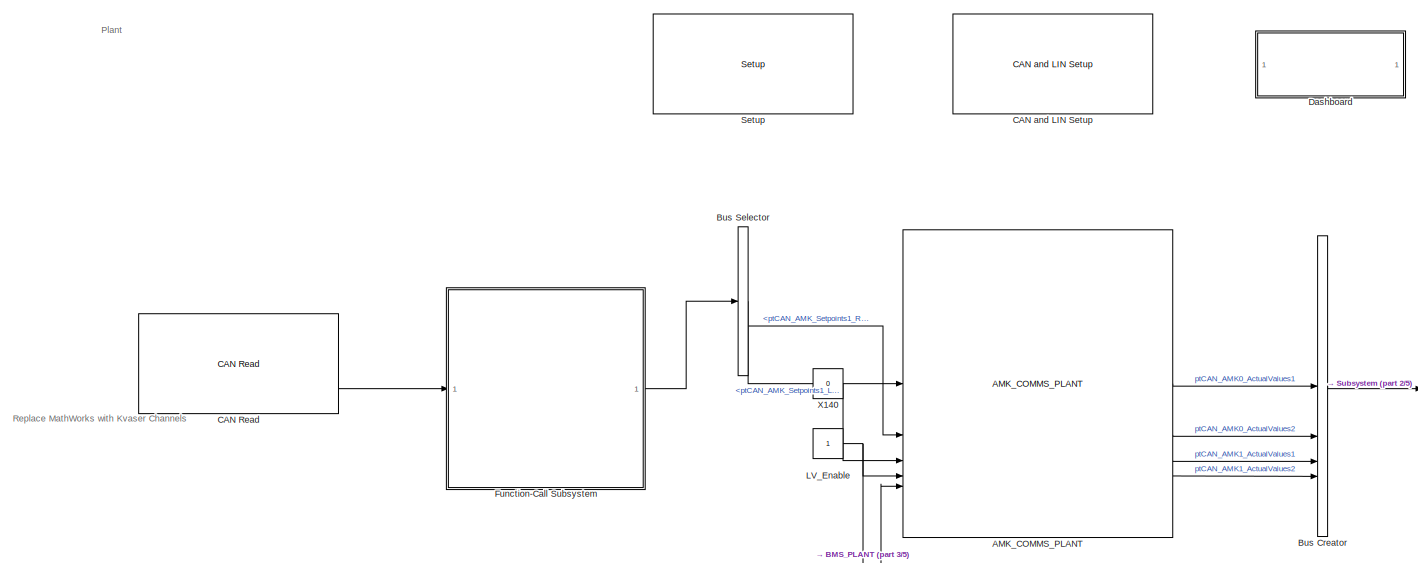
[diagram: root canvas - part 1/5, full width, top band]
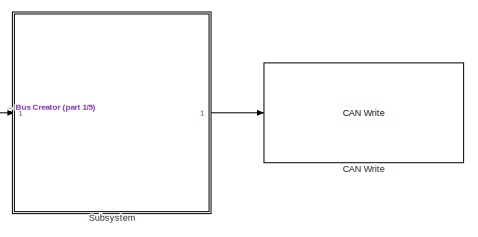
[diagram: root canvas - part 2/5, top right region]
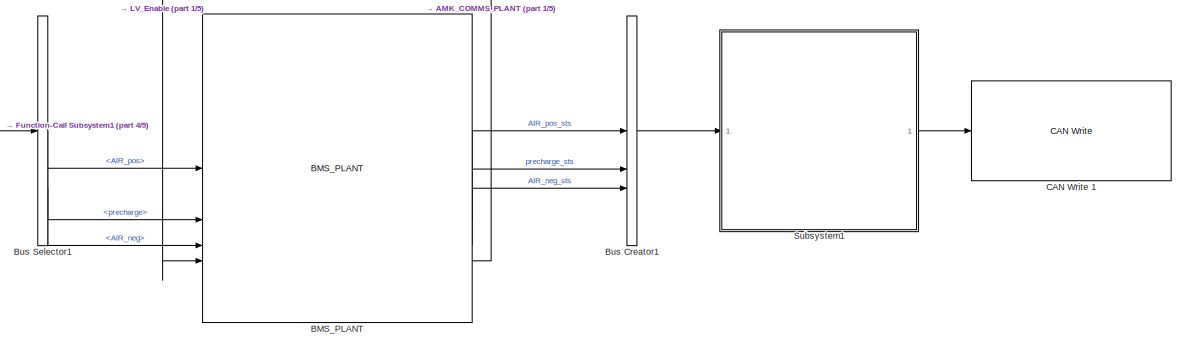
[diagram: root canvas - part 3/5, middle right region]
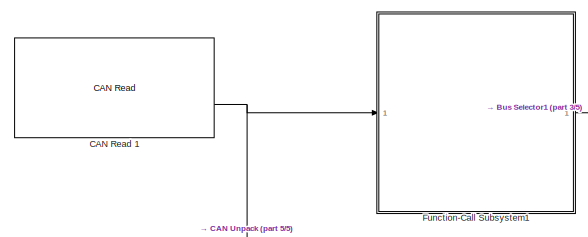
[diagram: root canvas - part 4/5, middle left region]
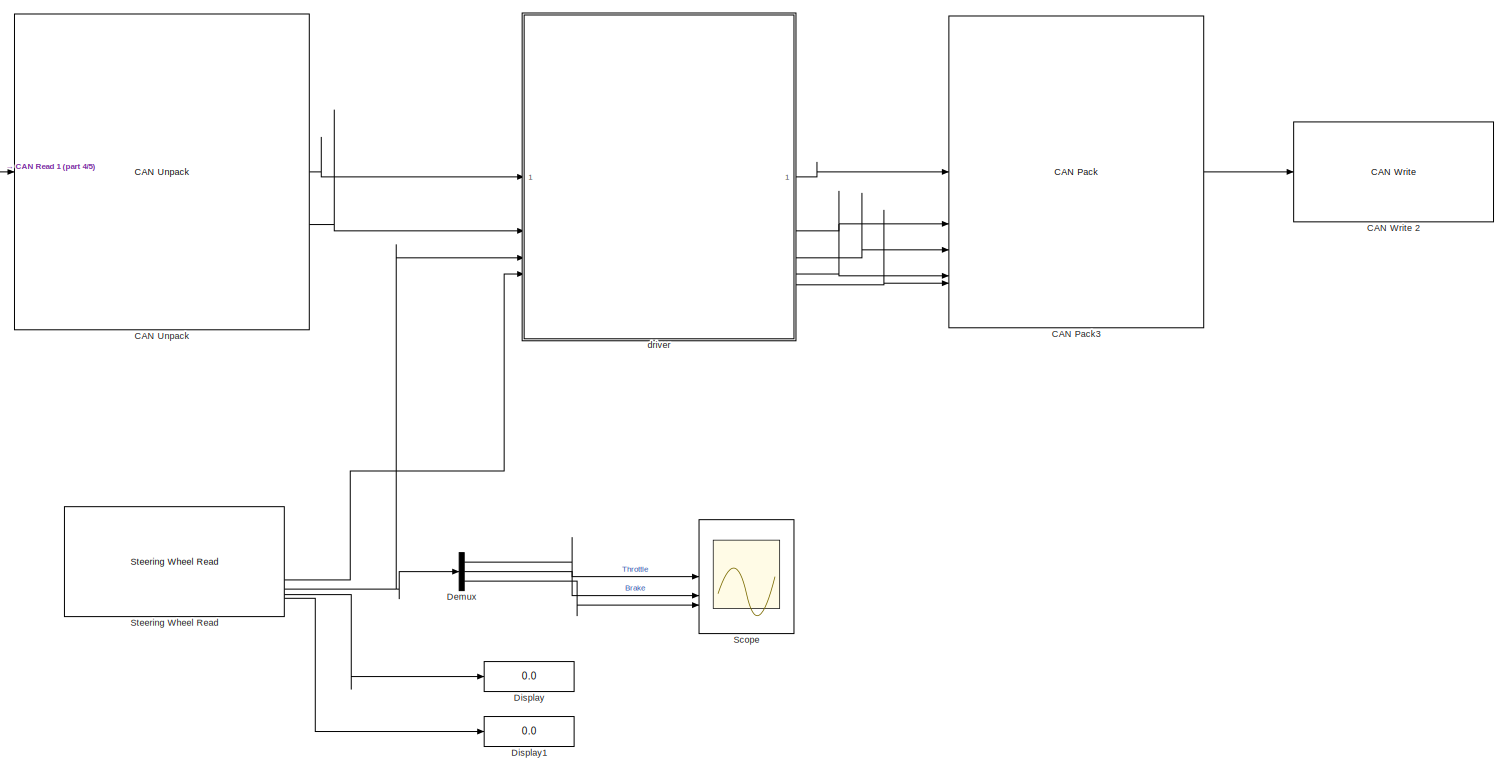
[diagram: root canvas - part 5/5, full width, bottom band]
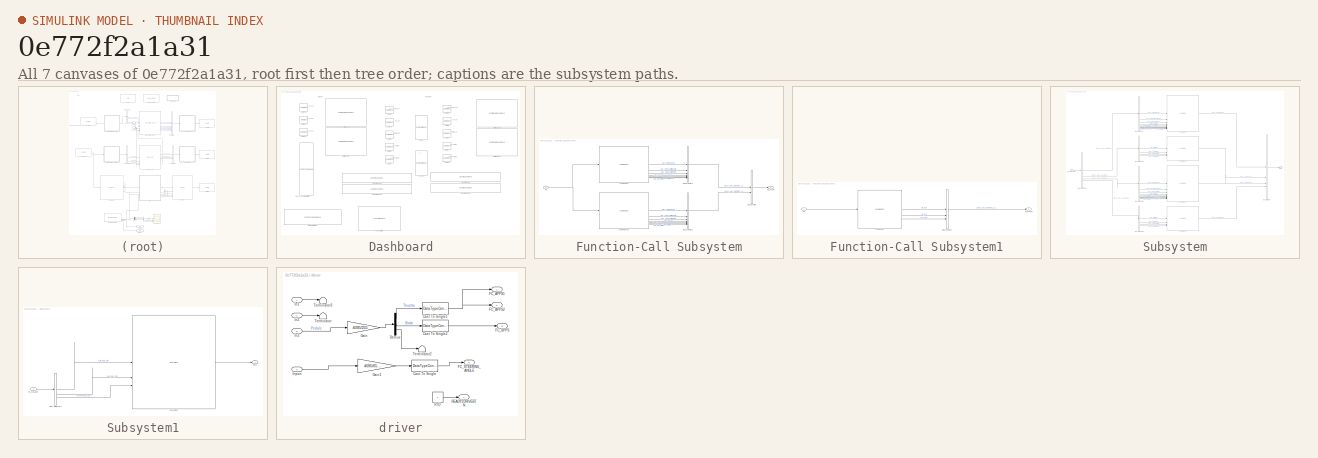
[diagram: thumbnail index - all 7 canvases of the model, root first then tree order]
MODEL slx_0e772f2a1a31
KIND model
CONFIG AbsTol = auto
CONFIG EnableMultiTasking = off
CONFIG FixedStep = 0.005
CONFIG MaxStep = auto
CONFIG MinStep = auto
CONFIG RelTol = 1e-3
CONFIG SampleTimeConstraint = Unconstrained
CONFIG SolverName = FixedStepAuto
CONFIG StartTime = 0.0
CONFIG StopTime = inf
BLOCK [Reference] AMK_COMMS_PLANT  REF=AMK_comms_plant_lib/AMK_COMMS_PLANT
  SourceBlock = AMK_comms_plant_lib/AMK_COMMS_PLANT
  SourceType = SubSystem
BLOCK [Reference] BMS_PLANT  REF=BMS_plant_lib/BMS_PLANT
  SourceBlock = BMS_plant_lib/BMS_PLANT
  SourceType = SubSystem
BLOCK [BusCreator] Bus Creator
  DisplayOption = bar
  InheritFromInputs = on
  Inputs = 4
BLOCK [BusCreator] Bus Creator1
  DisplayOption = bar
  InheritFromInputs = on
  Inputs = 3
BLOCK [BusSelector] Bus Selector
  OutputSignals = ptCAN_AMK_Setpoints1_Left,ptCAN_AMK_Setpoints1_Right
BLOCK [BusSelector] Bus Selector1
  OutputSignals = AIR_pos,precharge,AIR_neg
BLOCK [Reference] CAN Pack3  REF=canmsglib/CAN Pack
  LibrarySourceBlock = embeddedtargetslib/Host Communication/CAN Pack
  SourceBlock = canmsglib/CAN Pack
  SourceType = CAN Pack
BLOCK [Reference] CAN Read   REF=speedgoatlib_IO614/CAN Read 
  SourceBlock = speedgoatlib_IO614/CAN Read
  SourceProductName = Simulink Real-Time: Speedgoat I/O Blockset
  SourceType = read_IO61X_can
BLOCK [Reference] CAN Read 1  REF=speedgoatlib_IO614/CAN Read 
  SourceBlock = speedgoatlib_IO614/CAN Read
  SourceProductName = Simulink Real-Time: Speedgoat I/O Blockset
  SourceType = read_IO61X_can
BLOCK [Reference] CAN Unpack  REF=canmsglib/CAN Unpack
  LibrarySourceBlock = canlib/CAN Unpack
  SourceBlock = canmsglib/CAN Unpack
  SourceType = CAN Unpack
BLOCK [Reference] CAN Write   REF=speedgoatlib_IO614/CAN Write 
  SourceBlock = speedgoatlib_IO614/CAN Write
  SourceProductName = Simulink Real-Time: Speedgoat I/O Blockset
  SourceType = write_IO61X_can
BLOCK [Reference] CAN Write 1  REF=speedgoatlib_IO614/CAN Write 
  SourceBlock = speedgoatlib_IO614/CAN Write
  SourceProductName = Simulink Real-Time: Speedgoat I/O Blockset
  SourceType = write_IO61X_can
BLOCK [Reference] CAN Write 2  REF=speedgoatlib_IO614/CAN Write 
  SourceBlock = speedgoatlib_IO614/CAN Write
  SourceProductName = Simulink Real-Time: Speedgoat I/O Blockset
  SourceType = write_IO61X_can
BLOCK [Reference] CAN and LIN Setup   REF=speedgoatlib_IO614/CAN and LIN Setup 
  LibrarySourceBlock = speedgoatlib_CANLIN_OfA2/CAN and LIN Setup
  SourceBlock = speedgoatlib_IO614/CAN and LIN Setup
  SourceType = setup_IO61X_canlin
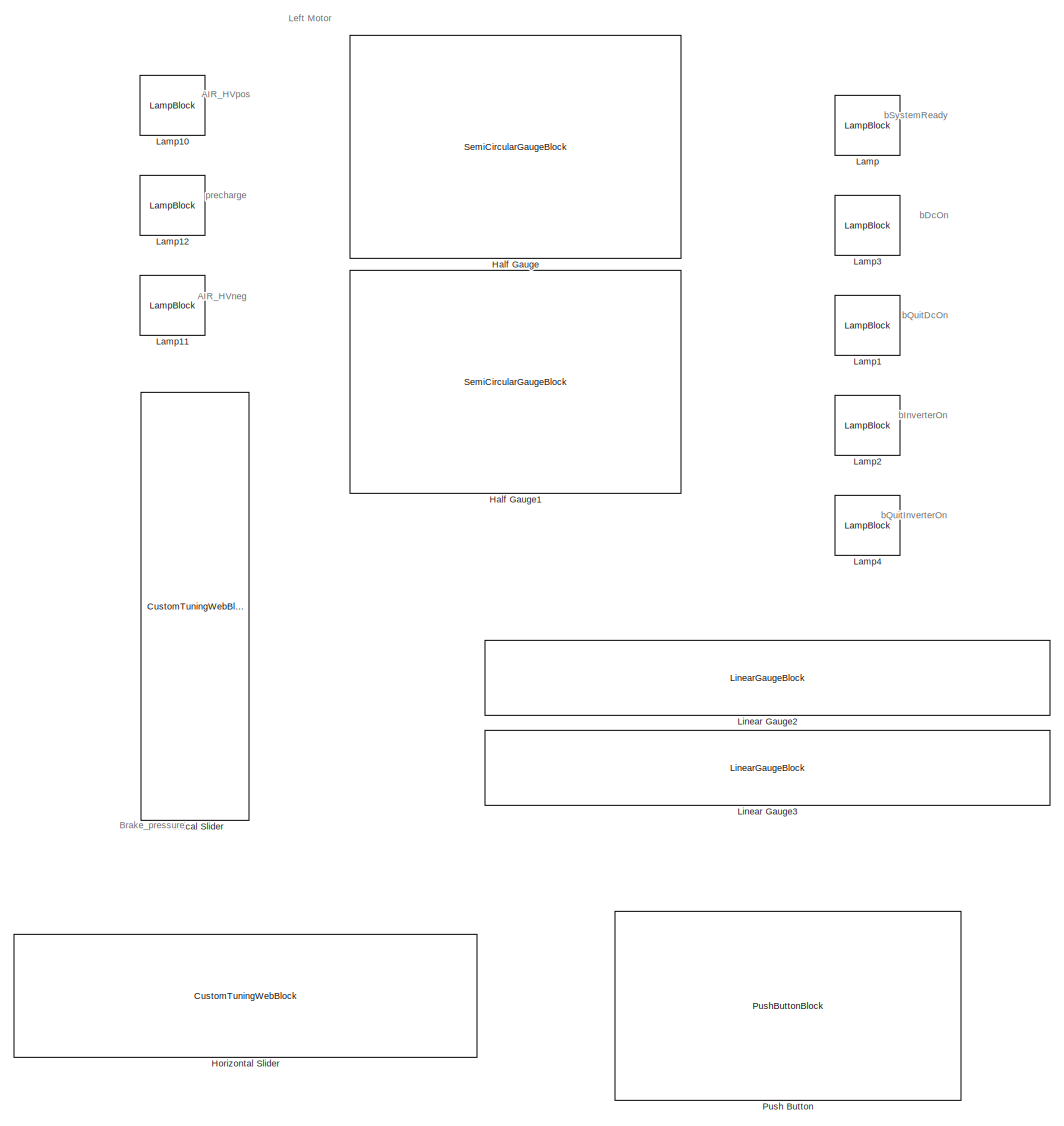
[diagram: Dashboard - part 1/2, left side, full height]
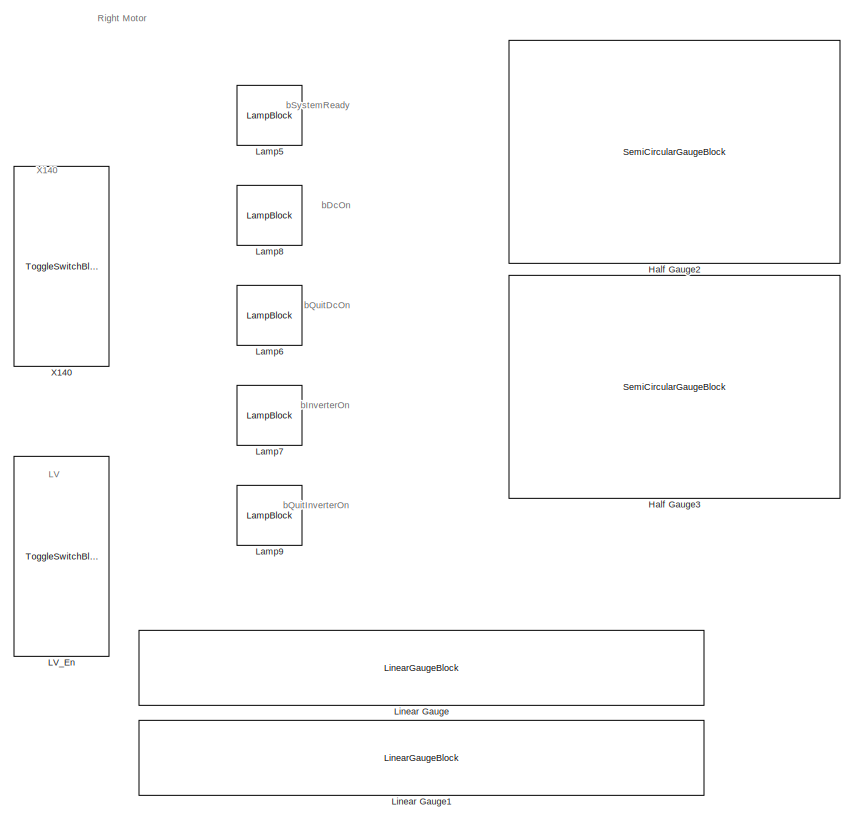
[diagram: Dashboard - part 2/2, middle right region]
BLOCK [SubSystem] Dashboard
BLOCK [SemiCircularGaugeBlock] Dashboard/Half Gauge
  LabelPosition = Bottom
  ScaleMax = 20000
  TickInterval = 2000
BLOCK [SemiCircularGaugeBlock] Dashboard/Half Gauge1
  LabelPosition = Bottom
  ScaleMax = 1000
  TickInterval = 100
BLOCK [SemiCircularGaugeBlock] Dashboard/Half Gauge2
  LabelPosition = Bottom
  ScaleMax = 20000
  TickInterval = 2000
BLOCK [SemiCircularGaugeBlock] Dashboard/Half Gauge3
  LabelPosition = Bottom
  ScaleMax = 1000
  TickInterval = 100
BLOCK [CustomTuningWebBlock] Dashboard/Horizontal Slider
  Configuration = {"components":[{"name":"LinearScaleComponent","settings":{"bounds":{"max":4095,"min":0,"tickInterval":"auto"},"internalTickHeightScaleFactor":0.5,"labelColor":[255,255,200],"labelFont":{"font":"Arial","fontSize":12},"labelOffset":0.05,"labelTransparency":1,"needleImage":{"size":[596,842],"src":"data:image\/svg+xml;base64,PD94bWwgdmVyc2lvbj0iMS4wIiBlbmNvZGluZz0idXRmLTgiPz4NCjwhLS0gR2VuZXJhdG9yOiBBZ...<+5491ch>
  LabelPosition = Hide
  ShowInitialText = on
BLOCK [ToggleSwitchBlock] Dashboard/LV_En
  LabelPosition = Bottom
BLOCK [LampBlock] Dashboard/Lamp
  LabelPosition = Hide
BLOCK [LampBlock] Dashboard/Lamp1
  LabelPosition = Hide
BLOCK [LampBlock] Dashboard/Lamp10
  LabelPosition = Hide
BLOCK [LampBlock] Dashboard/Lamp11
  LabelPosition = Hide
BLOCK [LampBlock] Dashboard/Lamp12
  LabelPosition = Hide
BLOCK [LampBlock] Dashboard/Lamp2
  LabelPosition = Hide
BLOCK [LampBlock] Dashboard/Lamp3
  LabelPosition = Hide
BLOCK [LampBlock] Dashboard/Lamp4
  LabelPosition = Hide
BLOCK [LampBlock] Dashboard/Lamp5
  LabelPosition = Hide
BLOCK [LampBlock] Dashboard/Lamp6
  LabelPosition = Hide
BLOCK [LampBlock] Dashboard/Lamp7
  LabelPosition = Hide
BLOCK [LampBlock] Dashboard/Lamp8
  LabelPosition = Hide
BLOCK [LampBlock] Dashboard/Lamp9
  LabelPosition = Hide
BLOCK [LinearGaugeBlock] Dashboard/Linear Gauge
  ScaleMax = 20000
  TickInterval = 2000
BLOCK [LinearGaugeBlock] Dashboard/Linear Gauge1
  ScaleMax = 1000
  TickInterval = 100
BLOCK [LinearGaugeBlock] Dashboard/Linear Gauge2
  ScaleMax = 20000
  TickInterval = 2000
BLOCK [LinearGaugeBlock] Dashboard/Linear Gauge3
  ScaleMax = 1000
  TickInterval = 100
BLOCK [PushButtonBlock] Dashboard/Push Button
  OffValue = -nan(ind)
BLOCK [CustomTuningWebBlock] Dashboard/Vertical Slider
  Configuration = {"components":[{"name":"LinearScaleComponent","settings":{"bounds":{"max":4095,"min":0,"tickInterval":"auto"},"internalTickHeightScaleFactor":0.5,"labelColor":[255,255,200],"labelFont":{"font":"Arial","fontSize":12},"labelOffset":0.05,"labelTransparency":1,"needleImage":{"size":[596,842],"src":"data:image\/svg+xml;base64,PD94bWwgdmVyc2lvbj0iMS4wIiBlbmNvZGluZz0idXRmLTgiPz4NCjwhLS0gR2VuZXJhdG9yOiBBZ...<+5493ch>
  LabelPosition = Hide
  ShowInitialText = on
BLOCK [ToggleSwitchBlock] Dashboard/X140
  LabelPosition = Bottom
BLOCK [Demux] Demux
  Outputs = 3
BLOCK [Display] Display
  Decimation = 1
BLOCK [Display] Display1
  Decimation = 1
BLOCK [SubSystem] Function-Call Subsystem
  TreatAsAtomicUnit = on
BLOCK [BusCreator] Function-Call Subsystem/Bus Creator
  DisplayOption = bar
  InheritFromInputs = on
  Inputs = 2
BLOCK [BusCreator] Function-Call Subsystem/Bus Creator1
  DisplayOption = bar
  InheritFromInputs = on
  Inputs = 7
BLOCK [BusCreator] Function-Call Subsystem/Bus Creator2
  DisplayOption = bar
  InheritFromInputs = on
  Inputs = 7
BLOCK [Reference] Function-Call Subsystem/CAN Unpack  REF=canmsglib/CAN Unpack
  LibrarySourceBlock = canlib/CAN Unpack
  SourceBlock = canmsglib/CAN Unpack
  SourceType = CAN Unpack
BLOCK [Reference] Function-Call Subsystem/CAN Unpack1  REF=canmsglib/CAN Unpack
  LibrarySourceBlock = canlib/CAN Unpack
  SourceBlock = canmsglib/CAN Unpack
  SourceType = CAN Unpack
BLOCK [Inport] Function-Call Subsystem/In1
BLOCK [Outport] Function-Call Subsystem/pt_CAN_IN
BLOCK [SubSystem] Function-Call Subsystem1
  TreatAsAtomicUnit = on
BLOCK [BusCreator] Function-Call Subsystem1/Bus Creator1
  DisplayOption = bar
  InheritFromInputs = on
  Inputs = 3
BLOCK [Reference] Function-Call Subsystem1/CAN Unpack  REF=canmsglib/CAN Unpack
  LibrarySourceBlock = canlib/CAN Unpack
  SourceBlock = canmsglib/CAN Unpack
  SourceType = CAN Unpack
BLOCK [Inport] Function-Call Subsystem1/In1
BLOCK [Outport] Function-Call Subsystem1/pt_CAN_IN
BLOCK [Constant] LV_Enable
BLOCK [Scope] Scope
  Floating = off
  NumInputPorts = 3
  ScopeSpecificationString = Simulink.scopes.TimeScopeBlockCfg('CurrentConfiguration', extmgr.ConfigurationSet(extmgr.Configuration('Core','General UI',true),extmgr.Configuration('Core','Source UI',true),extmgr.Configuration('Sources','WiredSimulink',true),extmgr.Configuration('Visuals','Time Domain',true,'SerializedDisplays',{struct('MinYLimReal','155.00000','MaxYLimReal','355.00000','YLabelReal','','MinYLimMag','155.00000',...<+1351ch>
BLOCK [Reference] Setup   REF=speedgoatlib_IO191/Setup 
  SourceBlock = speedgoatlib_IO191/Setup
  SourceType = setup_IO191
BLOCK [Reference] Steering Wheel Read  REF=slrealtimeG29lib/Steering Wheel Read
  SourceBlock = slrealtimeG29lib/Steering Wheel Read
  SourceType = Logitech G29 Steering Wheel
BLOCK [SubSystem] Subsystem
BLOCK [BusCreator] Subsystem/Bus Creator
  DisplayOption = bar
  InheritFromInputs = on
  Inputs = 4
BLOCK [BusSelector] Subsystem/Bus Selector
  OutputSignals = AMK_ActualVelocity,AMK_MagnetizingCurrent,AMK_TorqueCurrent_L,AMK_bDcOn,AMK_bDerating,AMK_bError,AMK_bInverterOn,AMK_bQuitDcOn,AMK_bQuitInverterOn,AMK_bSystemReady,AMK_bWarn
BLOCK [BusSelector] Subsystem/Bus Selector1
  OutputSignals = AMK_ErrorInfo,AMK_TempIGBT,AMK_TempInverter,AMK_TempMotor
BLOCK [BusSelector] Subsystem/Bus Selector2
  OutputSignals = AMK_ActualVelocity,AMK_MagnetizingCurrent,AMK_TorqueCurrent,AMK_bDcOn,AMK_bDerating,AMK_bError,AMK_bInverterOn,AMK_bQuitDcOn,AMK_bQuitInverterOn,AMK_bSystemReady,AMK_bWarn
BLOCK [BusSelector] Subsystem/Bus Selector3
  OutputSignals = AMK_ErrorInfo,AMK_TempIGBT,AMK_TempInverter,AMK_TempMotor
BLOCK [BusSelector] Subsystem/Bus Selector4
  OutputSignals = ptCAN_AMK0_ActualValues1,ptCAN_AMK0_ActualValues2,ptCAN_AMK1_ActualValues1,ptCAN_AMK1_ActualValues2
BLOCK [Reference] Subsystem/CAN Pack  REF=canmsglib/CAN Pack
  LibrarySourceBlock = canlib/CAN Pack
  SourceBlock = canmsglib/CAN Pack
  SourceType = CAN Pack
BLOCK [Reference] Subsystem/CAN Pack1  REF=canmsglib/CAN Pack
  LibrarySourceBlock = canlib/CAN Pack
  SourceBlock = canmsglib/CAN Pack
  SourceType = CAN Pack
BLOCK [Reference] Subsystem/CAN Pack2  REF=canmsglib/CAN Pack
  LibrarySourceBlock = canlib/CAN Pack
  SourceBlock = canmsglib/CAN Pack
  SourceType = CAN Pack
BLOCK [Reference] Subsystem/CAN Pack3  REF=canmsglib/CAN Pack
  LibrarySourceBlock = canlib/CAN Pack
  SourceBlock = canmsglib/CAN Pack
  SourceType = CAN Pack
BLOCK [Outport] Subsystem/Out1
BLOCK [Inport] Subsystem/pt_CAN_OUT
BLOCK [SubSystem] Subsystem1
BLOCK [BusSelector] Subsystem1/Bus Selector4
  OutputSignals = AIR_neg_sts,AIR_pos_sts,precharge_sts
BLOCK [Reference] Subsystem1/CAN Pack  REF=canmsglib/CAN Pack
  LibrarySourceBlock = canlib/CAN Pack
  SourceBlock = canmsglib/CAN Pack
  SourceType = CAN Pack
BLOCK [Outport] Subsystem1/Out1
BLOCK [Inport] Subsystem1/pt_CAN_OUT
BLOCK [Constant] X140
  Value = 0
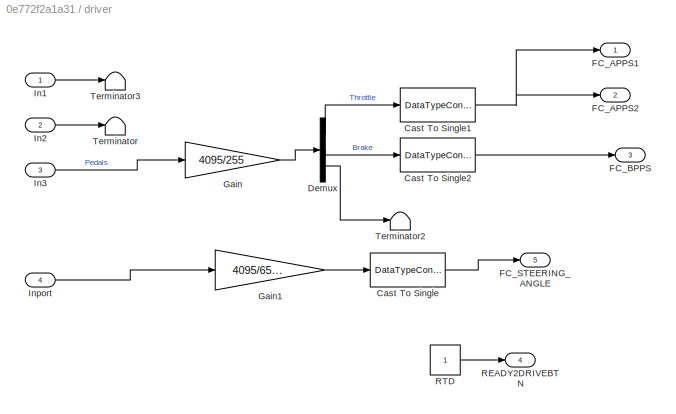
BLOCK [SubSystem] driver
BLOCK [DataTypeConversion] driver/Cast To Single
  OutDataTypeStr = single
  RndMeth = Floor
  SaturateOnIntegerOverflow = off
BLOCK [DataTypeConversion] driver/Cast To Single1
  OutDataTypeStr = single
  RndMeth = Floor
  SaturateOnIntegerOverflow = off
BLOCK [DataTypeConversion] driver/Cast To Single2
  OutDataTypeStr = single
  RndMeth = Floor
  SaturateOnIntegerOverflow = off
BLOCK [Demux] driver/Demux
  Outputs = 3
BLOCK [Outport] driver/FC_APPS1
BLOCK [Outport] driver/FC_APPS2
  Port = 2
BLOCK [Outport] driver/FC_BPPS
  Port = 3
BLOCK [Outport] driver/FC_STEERING_ANGLE
  Port = 5
BLOCK [Gain] driver/Gain
  Gain = 4095/255
BLOCK [Gain] driver/Gain1
  Gain = 4095/65535
BLOCK [Inport] driver/In1
BLOCK [Inport] driver/In2
  Port = 2
BLOCK [Inport] driver/In3
  Port = 3
BLOCK [Inport] driver/Inport
  Port = 4
BLOCK [Outport] driver/READY2DRIVEBTN
  Port = 4
BLOCK [Constant] driver/RTD
BLOCK [Terminator] driver/Terminator
BLOCK [Terminator] driver/Terminator2
BLOCK [Terminator] driver/Terminator3
ANNOTATION (root): Replace MathWorks with Kvaser Channels
ANNOTATION (root): Plant
ANNOTATION Dashboard: Brake_pressure
ANNOTATION Dashboard: LV
ANNOTATION Dashboard: X140
ANNOTATION Dashboard: AIR_HVneg
ANNOTATION Dashboard: AIR_HVpos
ANNOTATION Dashboard: Left Motor
ANNOTATION Dashboard: Right Motor
ANNOTATION Dashboard: bDcOn
ANNOTATION Dashboard: bInverterOn
ANNOTATION Dashboard: bQuitDcOn
ANNOTATION Dashboard: bQuitInverterOn
ANNOTATION Dashboard: bSystemReady
ANNOTATION Dashboard: precharge
LINE AMK_COMMS_PLANT:1 -> Bus Creator:1
LINE AMK_COMMS_PLANT:2 -> Bus Creator:2
LINE AMK_COMMS_PLANT:3 -> Bus Creator:3
LINE AMK_COMMS_PLANT:4 -> Bus Creator:4
LINE BMS_PLANT:1 -> Bus Creator1:1
LINE BMS_PLANT:2 -> Bus Creator1:2
LINE BMS_PLANT:3 -> Bus Creator1:3
LINE BMS_PLANT:4 -> AMK_COMMS_PLANT:5
LINE Bus Creator1:1 -> Subsystem1:1
LINE Bus Creator:1 -> Subsystem:1
LINE Bus Selector1:1 -> BMS_PLANT:1
LINE Bus Selector1:2 -> BMS_PLANT:2
LINE Bus Selector1:3 -> BMS_PLANT:3
LINE Bus Selector:1 -> AMK_COMMS_PLANT:1
LINE Bus Selector:2 -> AMK_COMMS_PLANT:2
LINE CAN Pack3:1 -> CAN Write 2:1
NET CAN Read 1:2 -> CAN Unpack:1, Function-Call Subsystem1:1
LINE CAN Read :2 -> Function-Call Subsystem:1
LINE CAN Unpack:1 -> driver:1
LINE CAN Unpack:2 -> driver:2
LINE Demux:1 -> Scope:1
LINE Demux:2 -> Scope:2
LINE Demux:3 -> Scope:3
LINE Function-Call Subsystem/Bus Creator1:1 -> Function-Call Subsystem/Bus Creator:1
LINE Function-Call Subsystem/Bus Creator2:1 -> Function-Call Subsystem/Bus Creator:2
LINE Function-Call Subsystem/Bus Creator:1 -> Function-Call Subsystem/pt_CAN_IN:1
LINE Function-Call Subsystem/CAN Unpack1:1 -> Function-Call Subsystem/Bus Creator2:1
LINE Function-Call Subsystem/CAN Unpack1:2 -> Function-Call Subsystem/Bus Creator2:2
LINE Function-Call Subsystem/CAN Unpack1:3 -> Function-Call Subsystem/Bus Creator2:3
LINE Function-Call Subsystem/CAN Unpack1:4 -> Function-Call Subsystem/Bus Creator2:4
LINE Function-Call Subsystem/CAN Unpack1:5 -> Function-Call Subsystem/Bus Creator2:5
LINE Function-Call Subsystem/CAN Unpack1:6 -> Function-Call Subsystem/Bus Creator2:6
LINE Function-Call Subsystem/CAN Unpack1:7 -> Function-Call Subsystem/Bus Creator2:7
LINE Function-Call Subsystem/CAN Unpack:1 -> Function-Call Subsystem/Bus Creator1:1
LINE Function-Call Subsystem/CAN Unpack:2 -> Function-Call Subsystem/Bus Creator1:2
LINE Function-Call Subsystem/CAN Unpack:3 -> Function-Call Subsystem/Bus Creator1:3
LINE Function-Call Subsystem/CAN Unpack:4 -> Function-Call Subsystem/Bus Creator1:4
LINE Function-Call Subsystem/CAN Unpack:5 -> Function-Call Subsystem/Bus Creator1:5
LINE Function-Call Subsystem/CAN Unpack:6 -> Function-Call Subsystem/Bus Creator1:6
LINE Function-Call Subsystem/CAN Unpack:7 -> Function-Call Subsystem/Bus Creator1:7
NET Function-Call Subsystem/In1:1 -> Function-Call Subsystem/CAN Unpack1:1, Function-Call Subsystem/CAN Unpack:1
LINE Function-Call Subsystem1/Bus Creator1:1 -> Function-Call Subsystem1/pt_CAN_IN:1
LINE Function-Call Subsystem1/CAN Unpack:1 -> Function-Call Subsystem1/Bus Creator1:1
LINE Function-Call Subsystem1/CAN Unpack:2 -> Function-Call Subsystem1/Bus Creator1:2
LINE Function-Call Subsystem1/CAN Unpack:3 -> Function-Call Subsystem1/Bus Creator1:3
LINE Function-Call Subsystem1/In1:1 -> Function-Call Subsystem1/CAN Unpack:1
LINE Function-Call Subsystem1:1 -> Bus Selector1:1
LINE Function-Call Subsystem:1 -> Bus Selector:1
NET LV_Enable:1 -> AMK_COMMS_PLANT:4, BMS_PLANT:4
LINE Steering Wheel Read:2 -> driver:4
NET Steering Wheel Read:3 -> Demux:1, driver:3
LINE Steering Wheel Read:4 -> Display:1
LINE Steering Wheel Read:5 -> Display1:1
LINE Subsystem/Bus Creator:1 -> Subsystem/Out1:1
LINE Subsystem/Bus Selector1:1 -> Subsystem/CAN Pack1:1
LINE Subsystem/Bus Selector1:2 -> Subsystem/CAN Pack1:2
LINE Subsystem/Bus Selector1:3 -> Subsystem/CAN Pack1:3
LINE Subsystem/Bus Selector1:4 -> Subsystem/CAN Pack1:4
LINE Subsystem/Bus Selector2:1 -> Subsystem/CAN Pack2:1
LINE Subsystem/Bus Selector2:10 -> Subsystem/CAN Pack2:10
LINE Subsystem/Bus Selector2:11 -> Subsystem/CAN Pack2:11
LINE Subsystem/Bus Selector2:2 -> Subsystem/CAN Pack2:2
LINE Subsystem/Bus Selector2:3 -> Subsystem/CAN Pack2:3
LINE Subsystem/Bus Selector2:4 -> Subsystem/CAN Pack2:4
LINE Subsystem/Bus Selector2:5 -> Subsystem/CAN Pack2:5
LINE Subsystem/Bus Selector2:6 -> Subsystem/CAN Pack2:6
LINE Subsystem/Bus Selector2:7 -> Subsystem/CAN Pack2:7
LINE Subsystem/Bus Selector2:8 -> Subsystem/CAN Pack2:8
LINE Subsystem/Bus Selector2:9 -> Subsystem/CAN Pack2:9
LINE Subsystem/Bus Selector3:1 -> Subsystem/CAN Pack3:1
LINE Subsystem/Bus Selector3:2 -> Subsystem/CAN Pack3:2
LINE Subsystem/Bus Selector3:3 -> Subsystem/CAN Pack3:3
LINE Subsystem/Bus Selector3:4 -> Subsystem/CAN Pack3:4
LINE Subsystem/Bus Selector4:1 -> Subsystem/Bus Selector:1
LINE Subsystem/Bus Selector4:2 -> Subsystem/Bus Selector1:1
LINE Subsystem/Bus Selector4:3 -> Subsystem/Bus Selector2:1
LINE Subsystem/Bus Selector4:4 -> Subsystem/Bus Selector3:1
LINE Subsystem/Bus Selector:1 -> Subsystem/CAN Pack:1
LINE Subsystem/Bus Selector:10 -> Subsystem/CAN Pack:10
LINE Subsystem/Bus Selector:11 -> Subsystem/CAN Pack:11
LINE Subsystem/Bus Selector:2 -> Subsystem/CAN Pack:2
LINE Subsystem/Bus Selector:3 -> Subsystem/CAN Pack:3
LINE Subsystem/Bus Selector:4 -> Subsystem/CAN Pack:4
LINE Subsystem/Bus Selector:5 -> Subsystem/CAN Pack:5
LINE Subsystem/Bus Selector:6 -> Subsystem/CAN Pack:6
LINE Subsystem/Bus Selector:7 -> Subsystem/CAN Pack:7
LINE Subsystem/Bus Selector:8 -> Subsystem/CAN Pack:8
LINE Subsystem/Bus Selector:9 -> Subsystem/CAN Pack:9
LINE Subsystem/CAN Pack1:1 -> Subsystem/Bus Creator:2
LINE Subsystem/CAN Pack2:1 -> Subsystem/Bus Creator:3
LINE Subsystem/CAN Pack3:1 -> Subsystem/Bus Creator:4
LINE Subsystem/CAN Pack:1 -> Subsystem/Bus Creator:1
LINE Subsystem/pt_CAN_OUT:1 -> Subsystem/Bus Selector4:1
LINE Subsystem1/Bus Selector4:1 -> Subsystem1/CAN Pack:1
LINE Subsystem1/Bus Selector4:2 -> Subsystem1/CAN Pack:2
LINE Subsystem1/Bus Selector4:3 -> Subsystem1/CAN Pack:3
LINE Subsystem1/CAN Pack:1 -> Subsystem1/Out1:1
LINE Subsystem1/pt_CAN_OUT:1 -> Subsystem1/Bus Selector4:1
LINE Subsystem1:1 -> CAN Write 1:1
LINE Subsystem:1 -> CAN Write :1
LINE X140:1 -> AMK_COMMS_PLANT:3
NET driver/Cast To Single1:1 -> driver/FC_APPS1:1, driver/FC_APPS2:1
LINE driver/Cast To Single2:1 -> driver/FC_BPPS:1
LINE driver/Cast To Single:1 -> driver/FC_STEERING_ANGLE:1
LINE driver/Demux:1 -> driver/Cast To Single1:1
LINE driver/Demux:2 -> driver/Cast To Single2:1
LINE driver/Demux:3 -> driver/Terminator2:1
LINE driver/Gain1:1 -> driver/Cast To Single:1
LINE driver/Gain:1 -> driver/Demux:1
LINE driver/In1:1 -> driver/Terminator3:1
LINE driver/In2:1 -> driver/Terminator:1
LINE driver/In3:1 -> driver/Gain:1
LINE driver/Inport:1 -> driver/Gain1:1
LINE driver/RTD:1 -> driver/READY2DRIVEBTN:1
LINE driver:1 -> CAN Pack3:1
LINE driver:2 -> CAN Pack3:2
LINE driver:3 -> CAN Pack3:3
LINE driver:4 -> CAN Pack3:5
LINE driver:5 -> CAN Pack3:6
note: NET lines group one-source signal fan-out (src -> all destinations, sorted); 1:1 wires keep LINE
